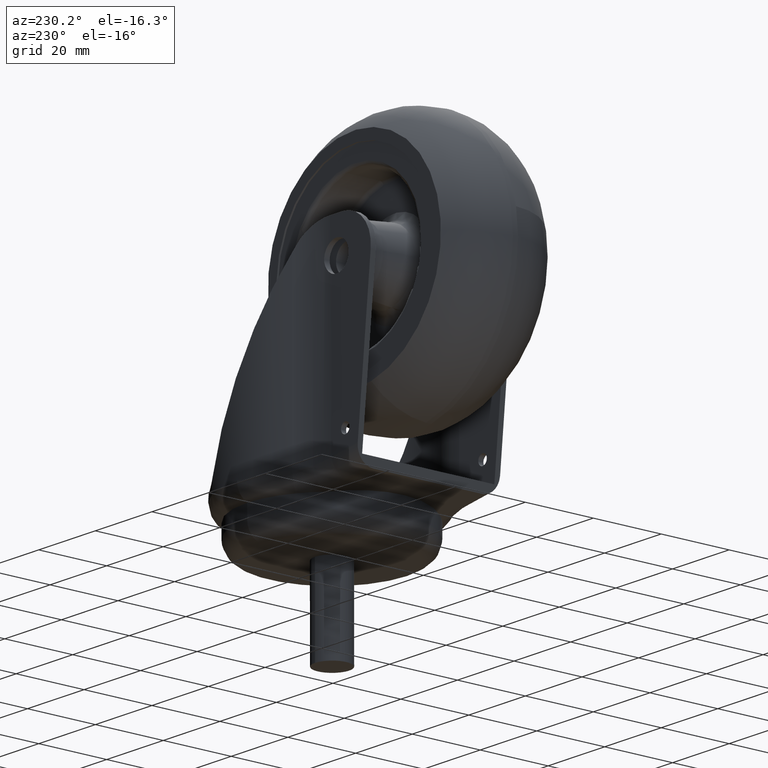
[diagram: clean part render]
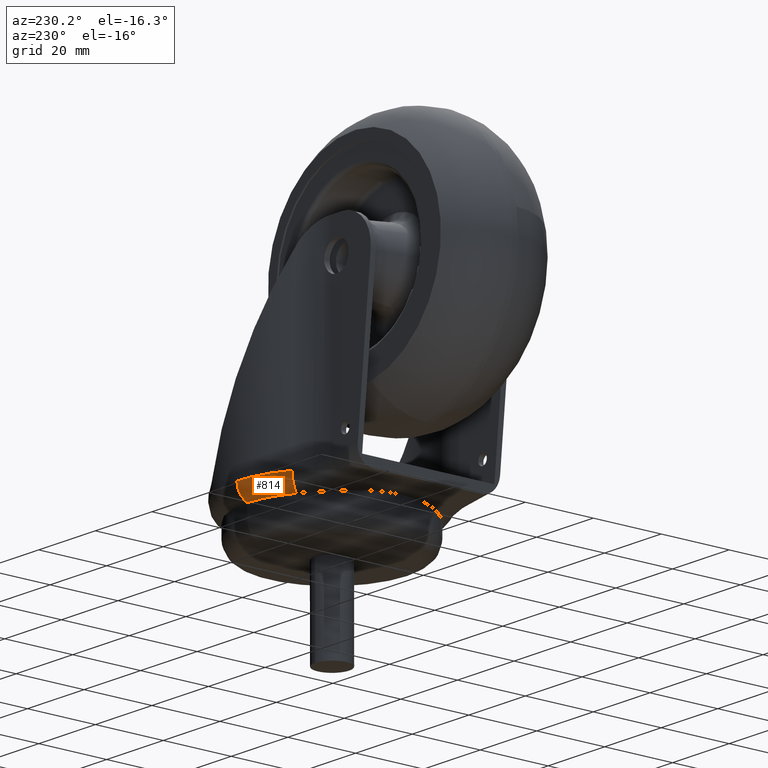
[diagram: same view with one face highlighted and labeled with its STEP entity id]
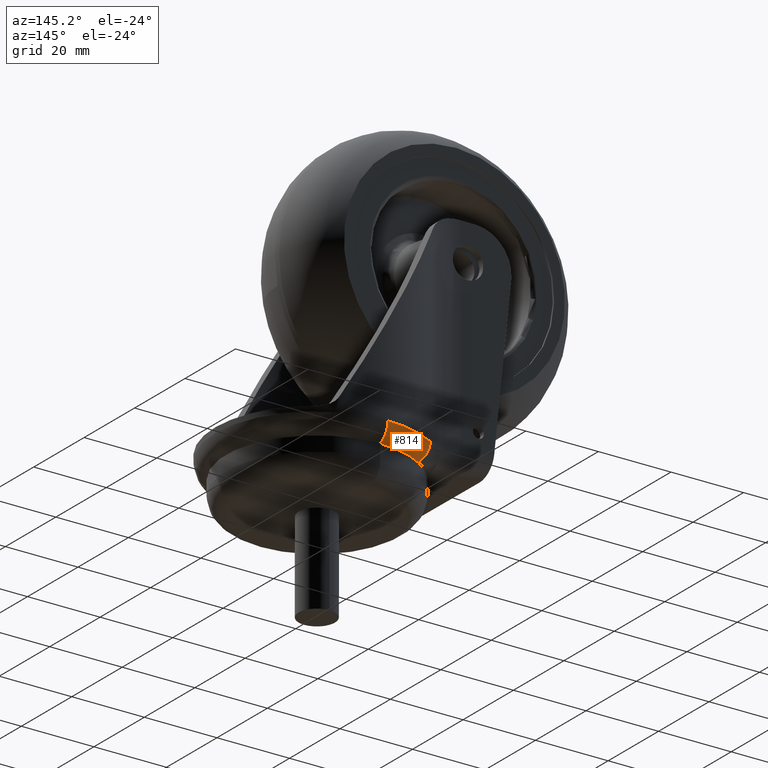
[diagram: same view with one face highlighted and labeled with its STEP entity id]
A machine part, auxiliary view. The second image highlights one B-rep face of the part: STEP entity #814.
A second angle (auxiliary view) of the same face is appended — the face is thin or edge-on in the first view.
In plain terms, the highlighted toroidal blend (fillet) surface has major radius 23 mm and minor (blend) radius 5 mm.
Its self-contained STEP definition (entity closure, byte-faithful):
#814 = ADVANCED_FACE ( 'NONE', ( #3370 ), #3363, .T. ) ;
#815 = EDGE_LOOP ( 'NONE', ( #816, #818, #819, #820 ) ) ;
#816 = ORIENTED_EDGE ( 'NONE', *, *, #817, .F. ) ;
#817 = EDGE_CURVE ( 'NONE', #838, #1544, #3359, .T. ) ;
#818 = ORIENTED_EDGE ( 'NONE', *, *, #837, .T. ) ;
#819 = ORIENTED_EDGE ( 'NONE', *, *, #2409, .T. ) ;
#820 = ORIENTED_EDGE ( 'NONE', *, *, #821, .F. ) ;
#821 = EDGE_CURVE ( 'NONE', #1544, #2525, #3387, .T. ) ;
#837 = EDGE_CURVE ( 'NONE', #838, #1747, #3465, .T. ) ;
#838 = VERTEX_POINT ( 'NONE', #3466 ) ;
#1544 = VERTEX_POINT ( 'NONE', #3550 ) ;
#1747 = VERTEX_POINT ( 'NONE', #3595 ) ;
#2409 = EDGE_CURVE ( 'NONE', #1747, #2525, #3587, .T. ) ;
#2525 = VERTEX_POINT ( 'NONE', #3588 ) ;
#3355 = DIRECTION ( 'NONE',  ( -1.000000000000000000, 0.0000000000000000000, 6.505213034913013100E-019 ) ) ;
#3356 = DIRECTION ( 'NONE',  ( -2.168404344970999200E-019, -4.336808689941998500E-019, -1.000000000000000000 ) ) ;
#3357 = CARTESIAN_POINT ( 'NONE',  ( 0.0000000000000000000, 40.00000000000007100, 0.0000000000000000000 ) ) ;
#3358 = AXIS2_PLACEMENT_3D ( 'NONE', #3357, #3356, #3355 ) ;
#3359 = CIRCLE ( 'NONE', #3358, 25.00000000000005700 ) ;
#3360 = DIRECTION ( 'NONE',  ( -1.000000000000000000, 9.403954806578216500E-038, 2.168404344970999200E-019 ) ) ;
#3361 = DIRECTION ( 'NONE',  ( -2.168404344970999200E-019, -4.336808689941998500E-019, -1.000000000000000000 ) ) ;
#3362 = AXIS2_PLACEMENT_3D ( 'NONE', #3368, #3361, #3360 ) ;
#3363 = TOROIDAL_SURFACE ( 'NONE', #3362, 23.00000000072628100, 5.000000000007794700 ) ;
#3368 = CARTESIAN_POINT ( 'NONE',  ( 6.057515600232932200E-010, 40.00000000000007100, 4.582575695000070200 ) ) ;
#3370 = FACE_OUTER_BOUND ( 'NONE', #815, .T. ) ;
#3383 = CARTESIAN_POINT ( 'NONE',  ( -27.99999999997500700, 40.00000000000013500, 4.582575695000000100 ) ) ;
#3384 = CARTESIAN_POINT ( 'NONE',  ( -28.00000000000015600, 40.00000000000001400, 2.533728020000003900 ) ) ;
#3385 = CARTESIAN_POINT ( 'NONE',  ( -26.87779991200008900, 40.00000000000007800, 0.8195390699999236500 ) ) ;
#3386 = CARTESIAN_POINT ( 'NONE',  ( -25.00000000000013100, 40.00000000000000700, 6.938893903907228400E-014 ) ) ;
#3387 =( BOUNDED_CURVE ( )  B_SPLINE_CURVE ( 3, ( #3386, #3385, #3384, #3383 ),
 .UNSPECIFIED., .F., .T. ) 
 B_SPLINE_CURVE_WITH_KNOTS ( ( 4, 4 ),
 ( 0.0000000000000000000, 1.000000000000000000 ),
 .UNSPECIFIED. ) 
 CURVE ( )  GEOMETRIC_REPRESENTATION_ITEM ( )  RATIONAL_B_SPLINE_CURVE ( ( 1.000000000000000000, 0.8911066843560500100, 0.8911066843560500100, 1.000000000000000000 ) ) 
 REPRESENTATION_ITEM ( '' )  );
#3461 = DIRECTION ( 'NONE',  ( -0.8541666666813324500, -0.5199993322404382600, 0.0000000000000000000 ) ) ;
#3462 = DIRECTION ( 'NONE',  ( -0.5199993322404401500, 0.8541666666813312300, -1.084202172485503200E-019 ) ) ;
#3463 = CARTESIAN_POINT ( 'NONE',  ( -19.64583333355499300, 28.04001535787831000, 4.582575695000070200 ) ) ;
#3464 = AXIS2_PLACEMENT_3D ( 'NONE', #3463, #3462, #3461 ) ;
#3465 = CIRCLE ( 'NONE', #3464, 5.000000000007798200 ) ;
#3466 = CARTESIAN_POINT ( 'NONE',  ( -21.35416666525414100, 27.00001669106629600, -2.774863672172500600E-011 ) ) ;
#3550 = CARTESIAN_POINT ( 'NONE',  ( -25.00000000000013100, 40.00000000000000700, 6.938893903907228400E-014 ) ) ;
#3583 = DIRECTION ( 'NONE',  ( -1.000000000000000000, 0.0000000000000000000, 0.0000000000000000000 ) ) ;
#3584 = DIRECTION ( 'NONE',  ( -2.168404344970999200E-019, -4.336808689941998500E-019, -1.000000000000000000 ) ) ;
#3585 = CARTESIAN_POINT ( 'NONE',  ( 1.876353239449457500E-009, 40.00000000000005000, 4.582575695000139500 ) ) ;
#3586 = AXIS2_PLACEMENT_3D ( 'NONE', #3585, #3584, #3583 ) ;
#3587 = CIRCLE ( 'NONE', #3586, 28.00000000177618600 ) ;
#3588 = CARTESIAN_POINT ( 'NONE',  ( -27.99999999997500700, 40.00000000000013500, 4.582575695000000100 ) ) ;
#3595 = CARTESIAN_POINT ( 'NONE',  ( -23.91666666630943200, 25.44001869576758100, 4.582575695000070200 ) ) ;